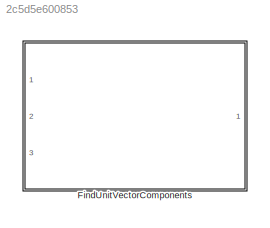
MODEL slx_2c5d5e600853
KIND library
CONFIG AbsTol = auto
CONFIG EnableMultiTasking = off
CONFIG FixedStep = auto
CONFIG MaxStep = auto
CONFIG MinStep = auto
CONFIG RelTol = 1e-3
CONFIG SampleTimeConstraint = Unconstrained
CONFIG Solver = VariableStepAuto
CONFIG SolverName = VariableStepAuto
CONFIG StartTime = 0.0
CONFIG StopTime = 10.0
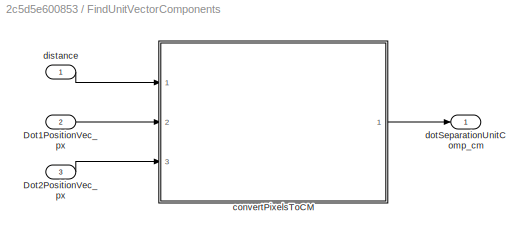
BLOCK [SubSystem] FindUnitVectorComponents
  Ports = [3, 1]
  RequestExecContextInheritance = off
BLOCK [Inport] FindUnitVectorComponents/Dot1PositionVec_px
  IconDisplay = Port number
  Port = 2
BLOCK [Inport] FindUnitVectorComponents/Dot2PositionVec_px
  IconDisplay = Port number
  Port = 3
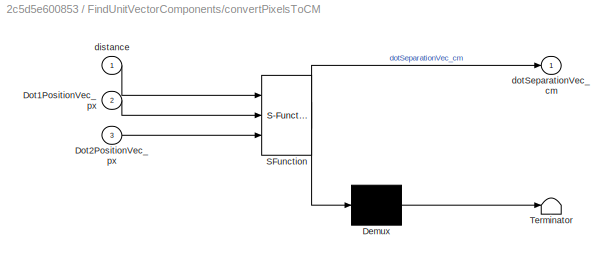
BLOCK [SubSystem] FindUnitVectorComponents/convertPixelsToCM
  ErrorFcn = Stateflow.Translate.translate
  PermitHierarchicalResolution = ExplicitOnly
  Ports = [3, 1]
  RequestExecContextInheritance = off
  SFBlockType = MATLAB Function
  TreatAsAtomicUnit = on
BLOCK [Demux] FindUnitVectorComponents/convertPixelsToCM/ Demux 
  Outputs = 1
  Ports = [1, 1]
BLOCK [S-Function] FindUnitVectorComponents/convertPixelsToCM/ SFunction 
  EnableBusSupport = on
  FunctionName = sf_sfun
  Parameters = cam2GroundRotationMatrix,cameraViewAngleVec_deg,imageDimensions
  PortCounts = [3 2]
  Ports = [3, 2]
  SFcnIsStateOwnerBlock = off
  SFunctionDeploymentMode = off
  Tag = Stateflow S-Function FindUnitVectorComponents_ul 14
BLOCK [Terminator] FindUnitVectorComponents/convertPixelsToCM/ Terminator 
BLOCK [Inport] FindUnitVectorComponents/convertPixelsToCM/Dot1PositionVec_px
  IconDisplay = Port number
  Port = 2
BLOCK [Inport] FindUnitVectorComponents/convertPixelsToCM/Dot2PositionVec_px
  IconDisplay = Port number
  Port = 3
BLOCK [Inport] FindUnitVectorComponents/convertPixelsToCM/distance
  IconDisplay = Port number
BLOCK [Outport] FindUnitVectorComponents/convertPixelsToCM/dotSeparationVec_cm
  IconDisplay = Port number
BLOCK [Inport] FindUnitVectorComponents/distance
  IconDisplay = Port number
BLOCK [Outport] FindUnitVectorComponents/dotSeparationUnitComp_cm
  IconDisplay = Port number
LINE FindUnitVectorComponents/Dot1PositionVec_px:1 -> FindUnitVectorComponents/convertPixelsToCM:2
LINE FindUnitVectorComponents/Dot2PositionVec_px:1 -> FindUnitVectorComponents/convertPixelsToCM:3
LINE FindUnitVectorComponents/convertPixelsToCM:1 -> FindUnitVectorComponents/dotSeparationUnitComp_cm:1
LINE FindUnitVectorComponents/distance:1 -> FindUnitVectorComponents/convertPixelsToCM:1
CHART FindUnitVectorComponents/convertPixelsToCM states=1 transitions=1
  STATE_LABEL 'eML_blk_kernel()'
  STATE_LABEL 'SCRIPT:\nfunction dotSeparationVec_cm = ...\n    convertPixelsToLength(distance,Dot1PositionVec_px,Dot2PositionVec_px,...\n    cameraViewAngleVec_deg, cam2GroundRotationMatrix, imageDimensions)\n\ndotSeparationVec_cm = ...\n    findUnitVectorComponents(distance,Dot1PositionVec_px,Dot2PositionVec_px,...\n    cameraViewAngleVec_deg, cam2GroundRotationMatrix, imageDimensions);\n\n\n\n\n\n\n\n\n\n\n\n'
